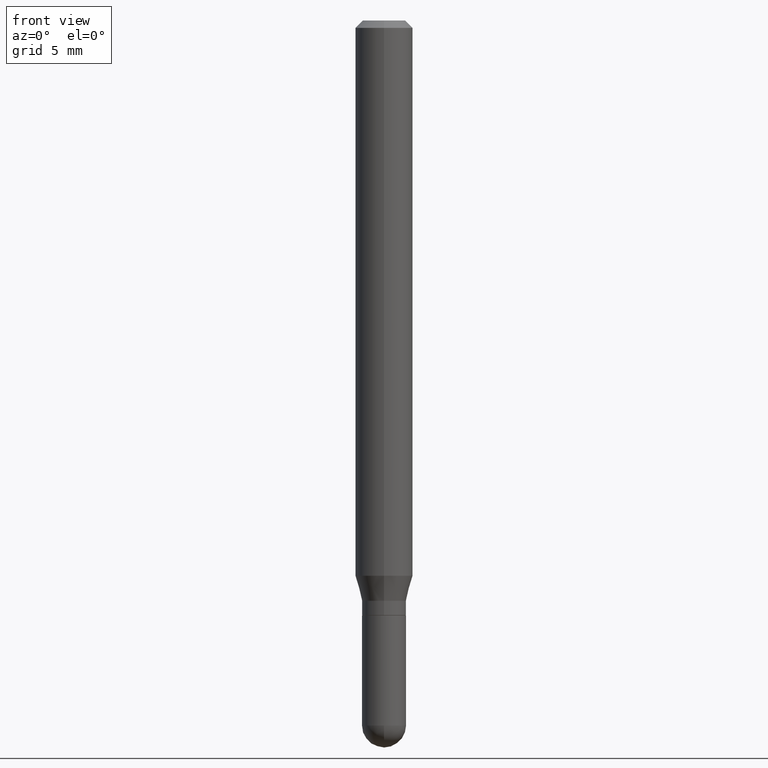
[diagram: clean part render]
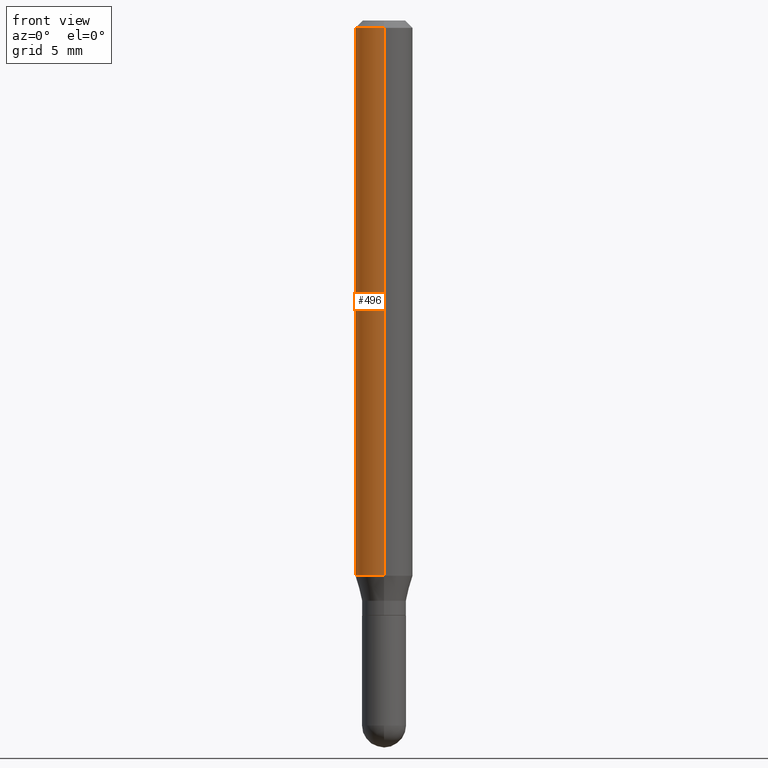
[diagram: same view with one face highlighted and labeled with its STEP entity id]
A machine part, front view. The second image highlights one B-rep face of the part: STEP entity #496.
In plain terms, the highlighted cylindrical surface (edge-blend (fillet) strip) has radius 1.4999 mm, axis along (-0, 0, 1).
Its self-contained STEP definition (entity closure, byte-faithful):
#1 = EDGE_CURVE ( 'NONE', #253, #218, #190, .T. ) ;
#14 = CARTESIAN_POINT ( 'NONE',  ( 3.668128010952441278E-31, -5.237329696546582811E-17, -0.01500000000000009139 ) ) ;
#15 = CARTESIAN_POINT ( 'NONE',  ( -4.123439461173736383E-16, -0.05905000000000005383, -0.01499999999999988495 ) ) ;
#17 = EDGE_CURVE ( 'NONE', #218, #503, #509, .T. ) ;
#63 = ORIENTED_EDGE ( 'NONE', *, *, #316, .F. ) ;
#67 = AXIS2_PLACEMENT_3D ( 'NONE', #14, #426, #233 ) ;
#131 = DIRECTION ( 'NONE',  ( -2.445418673968279448E-29, 3.491553131031033645E-15, 1.000000000000000000 ) ) ;
#157 = CARTESIAN_POINT ( 'NONE',  ( 4.195754854663672017E-16, 0.05904999999999994975, -0.01500000000000029955 ) ) ;
#168 = CYLINDRICAL_SURFACE ( 'NONE', #505, 0.05904999999999999832 ) ;
#175 = CARTESIAN_POINT ( 'NONE',  ( 4.195754854663390985E-16, 0.05904999999999999832, -2.061762123873825338E-16 ) ) ;
#190 = CIRCLE ( 'NONE', #428, 0.05904999999999999832 ) ;
#199 = DIRECTION ( 'NONE',  ( -2.445418673968279448E-29, 3.491553131031033645E-15, 1.000000000000000000 ) ) ;
#218 = VERTEX_POINT ( 'NONE', #240 ) ;
#233 = DIRECTION ( 'NONE',  ( -6.982962677686265922E-15, -1.000000000000000000, 3.505890868245046092E-15 ) ) ;
#240 = CARTESIAN_POINT ( 'NONE',  ( -4.123439461173460774E-16, -0.05905000000000398819, -1.142784301395928237 ) ) ;
#253 = VERTEX_POINT ( 'NONE', #370 ) ;
#276 = ORIENTED_EDGE ( 'NONE', *, *, #1, .T. ) ;
#289 = DIRECTION ( 'NONE',  ( -2.445418673968279448E-29, 3.491553131031033645E-15, 1.000000000000000000 ) ) ;
#316 = EDGE_CURVE ( 'NONE', #253, #325, #385, .T. ) ;
#317 = ORIENTED_EDGE ( 'NONE', *, *, #17, .T. ) ;
#325 = VERTEX_POINT ( 'NONE', #157 ) ;
#328 = VECTOR ( 'NONE', #289, 39.37007874015748143 ) ;
#331 = CARTESIAN_POINT ( 'NONE',  ( -4.123439461173739834E-16, -0.05904999999999999832, 2.061762123873825338E-16 ) ) ;
#341 = CARTESIAN_POINT ( 'NONE',  ( 0.000000000000000000, 0.000000000000000000, 0.000000000000000000 ) ) ;
#353 = EDGE_LOOP ( 'NONE', ( #63, #276, #317, #468 ) ) ;
#363 = DIRECTION ( 'NONE',  ( -6.982962677686265922E-15, -1.000000000000000000, 4.626330217890369336E-15 ) ) ;
#370 = CARTESIAN_POINT ( 'NONE',  ( 4.195754854663669552E-16, 0.05904999999999600152, -1.142784301395928681 ) ) ;
#383 = FACE_OUTER_BOUND ( 'NONE', #353, .T. ) ;
#385 = LINE ( 'NONE', #175, #328 ) ;
#397 = CIRCLE ( 'NONE', #67, 0.05904999999999999832 ) ;
#426 = DIRECTION ( 'NONE',  ( -2.445418673968279448E-29, 3.491553131031033645E-15, 1.000000000000000000 ) ) ;
#428 = AXIS2_PLACEMENT_3D ( 'NONE', #433, #199, #363 ) ;
#429 = EDGE_CURVE ( 'NONE', #325, #503, #397, .T. ) ;
#433 = CARTESIAN_POINT ( 'NONE',  ( 2.794586070951398077E-29, -3.990092105632066649E-15, -1.142784301395928459 ) ) ;
#454 = DIRECTION ( 'NONE',  ( -6.982962677686265922E-15, -1.000000000000000000, 3.491553131031033645E-15 ) ) ;
#468 = ORIENTED_EDGE ( 'NONE', *, *, #429, .F. ) ;
#475 = DIRECTION ( 'NONE',  ( -2.445418673968279448E-29, 3.491553131031033645E-15, 1.000000000000000000 ) ) ;
#479 = VECTOR ( 'NONE', #475, 39.37007874015748143 ) ;
#496 = ADVANCED_FACE ( 'NONE', ( #383 ), #168, .T. ) ;
#503 = VERTEX_POINT ( 'NONE', #15 ) ;
#505 = AXIS2_PLACEMENT_3D ( 'NONE', #341, #131, #454 ) ;
#509 = LINE ( 'NONE', #331, #479 ) ;